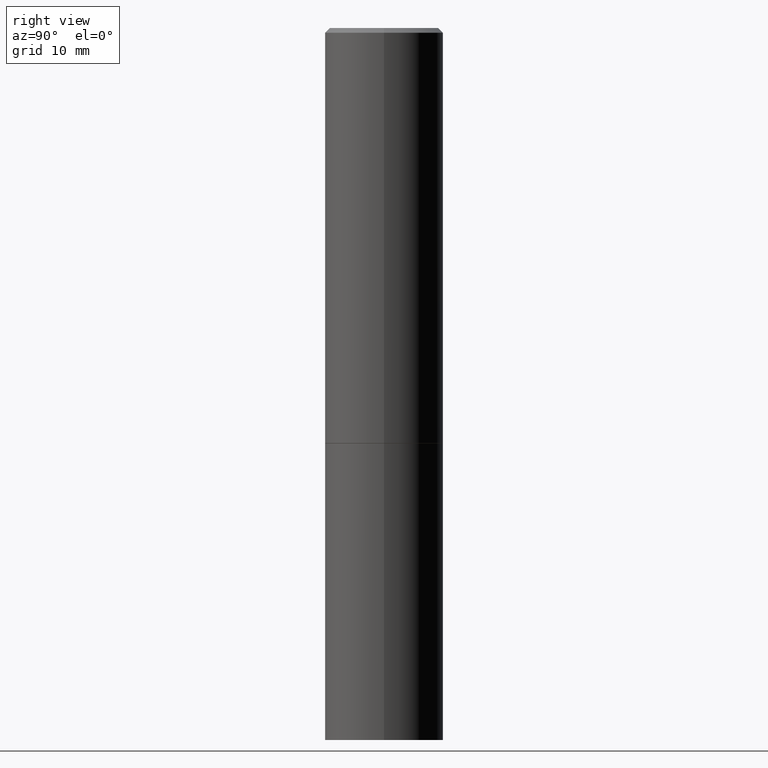
[diagram: clean part render]
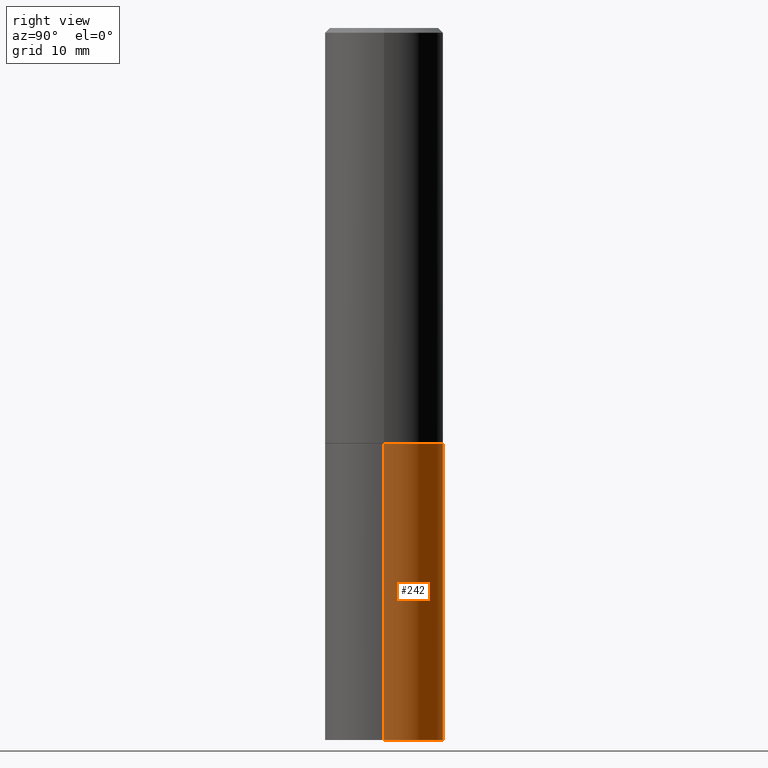
[diagram: same view with one face highlighted and labeled with its STEP entity id]
A machine part, right view. The second image highlights one B-rep face of the part: STEP entity #242.
In plain terms, the highlighted cylindrical surface (partial cylindrical patch) has radius 6.35 mm, axis along (-0, 0, 1).
Its self-contained STEP definition (entity closure, byte-faithful):
#3 = EDGE_CURVE ( 'NONE', #334, #74, #238, .T. ) ;
#9 = DIRECTION ( 'NONE',  ( 1.000000000000000000, -6.982962677686266711E-15, 0.000000000000000000 ) ) ;
#10 = FACE_OUTER_BOUND ( 'NONE', #20, .T. ) ;
#20 = EDGE_LOOP ( 'NONE', ( #47, #165, #51, #362 ) ) ;
#24 = DIRECTION ( 'NONE',  ( -2.445468806185136597E-29, 3.491481338843145583E-15, 1.000000000000000000 ) ) ;
#32 = CARTESIAN_POINT ( 'NONE',  ( 4.279570410823989044E-29, -6.110092342975505460E-15, -1.750000000000000222 ) ) ;
#47 = ORIENTED_EDGE ( 'NONE', *, *, #3, .T. ) ;
#51 = ORIENTED_EDGE ( 'NONE', *, *, #174, .F. ) ;
#70 = CARTESIAN_POINT ( 'NONE',  ( 0.2500000000000000000, -7.855833012397072137E-15, -1.750000000000000222 ) ) ;
#74 = VERTEX_POINT ( 'NONE', #286 ) ;
#80 = CARTESIAN_POINT ( 'NONE',  ( 7.336406418555409790E-29, -1.047444401652943635E-14, -3.000000000000000444 ) ) ;
#88 = AXIS2_PLACEMENT_3D ( 'NONE', #80, #24, #283 ) ;
#93 = DIRECTION ( 'NONE',  ( -2.445468806185136597E-29, 3.491481338843145583E-15, 1.000000000000000000 ) ) ;
#100 = CARTESIAN_POINT ( 'NONE',  ( -0.2500000000000000000, -6.515911340352220442E-15, -1.750000000000000222 ) ) ;
#117 = CYLINDRICAL_SURFACE ( 'NONE', #180, 0.2500000000000000000 ) ;
#118 = DIRECTION ( 'NONE',  ( 1.000000000000000000, -6.982962677686266711E-15, 4.876176775795935793E-29 ) ) ;
#127 = EDGE_CURVE ( 'NONE', #334, #167, #178, .T. ) ;
#133 = EDGE_CURVE ( 'NONE', #74, #312, #226, .T. ) ;
#141 = DIRECTION ( 'NONE',  ( -2.445468806185136597E-29, 3.491481338843145583E-15, 1.000000000000000000 ) ) ;
#165 = ORIENTED_EDGE ( 'NONE', *, *, #133, .T. ) ;
#167 = VERTEX_POINT ( 'NONE', #70 ) ;
#174 = EDGE_CURVE ( 'NONE', #167, #312, #350, .T. ) ;
#178 = LINE ( 'NONE', #207, #310 ) ;
#180 = AXIS2_PLACEMENT_3D ( 'NONE', #343, #93, #118 ) ;
#200 = DIRECTION ( 'NONE',  ( -2.445468806185136877E-29, 3.491481338843145188E-15, 1.000000000000000000 ) ) ;
#207 = CARTESIAN_POINT ( 'NONE',  ( 0.2500000000000000000, -1.745740669421566678E-15, 1.219044193948983948E-29 ) ) ;
#226 = LINE ( 'NONE', #291, #249 ) ;
#238 = CIRCLE ( 'NONE', #88, 0.2500000000000000000 ) ;
#242 = ADVANCED_FACE ( 'NONE', ( #10 ), #117, .T. ) ;
#249 = VECTOR ( 'NONE', #311, 39.37007874015748143 ) ;
#283 = DIRECTION ( 'NONE',  ( 1.000000000000000000, -6.982962677686262766E-15, 0.000000000000000000 ) ) ;
#286 = CARTESIAN_POINT ( 'NONE',  ( -0.2500000000000000000, -6.515911340352220442E-15, -3.000000000000000444 ) ) ;
#291 = CARTESIAN_POINT ( 'NONE',  ( -0.2500000000000000000, 1.776356839400250465E-15, -1.229733772563726445E-29 ) ) ;
#298 = AXIS2_PLACEMENT_3D ( 'NONE', #32, #141, #9 ) ;
#310 = VECTOR ( 'NONE', #200, 39.37007874015748143 ) ;
#311 = DIRECTION ( 'NONE',  ( -2.445468806185136877E-29, 3.491481338843145188E-15, 1.000000000000000000 ) ) ;
#312 = VERTEX_POINT ( 'NONE', #100 ) ;
#334 = VERTEX_POINT ( 'NONE', #354 ) ;
#343 = CARTESIAN_POINT ( 'NONE',  ( 0.000000000000000000, 0.000000000000000000, 0.000000000000000000 ) ) ;
#350 = CIRCLE ( 'NONE', #298, 0.2500000000000000000 ) ;
#354 = CARTESIAN_POINT ( 'NONE',  ( 0.2500000000000000000, -1.222018468595100303E-14, -3.000000000000000444 ) ) ;
#362 = ORIENTED_EDGE ( 'NONE', *, *, #127, .F. ) ;